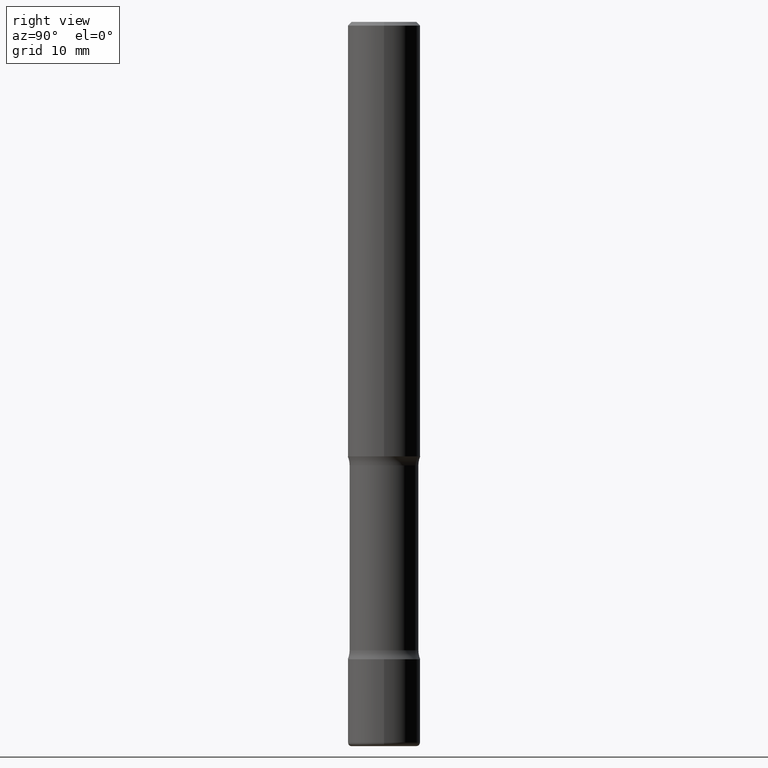
[diagram: clean part render]
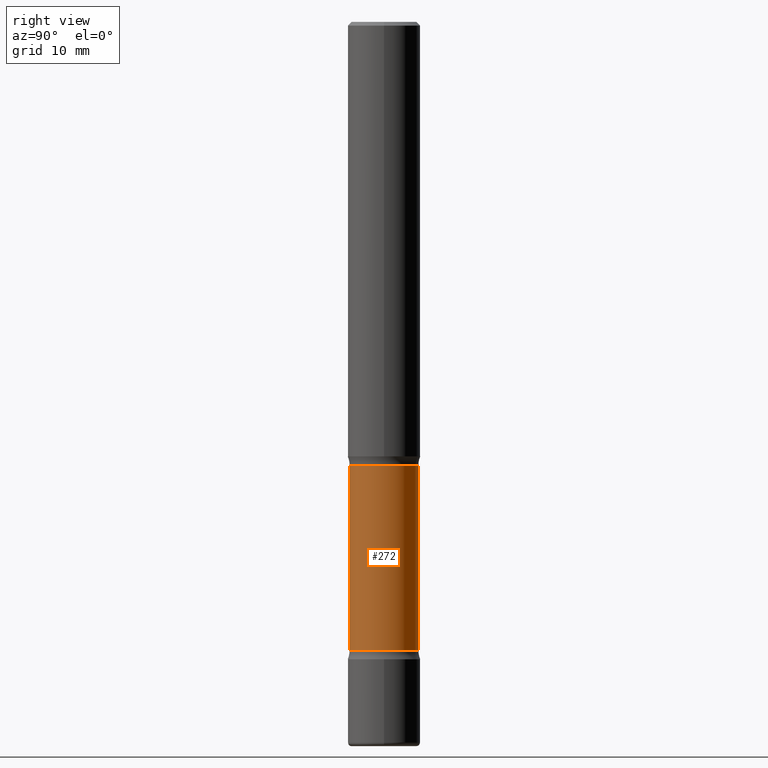
[diagram: same view with one face highlighted and labeled with its STEP entity id]
A machine part, right view. The second image highlights one B-rep face of the part: STEP entity #272.
In plain terms, the highlighted cylindrical surface (edge-blend (fillet) strip) has radius 4.7498 mm, axis along (0, -0, -1).
Its self-contained STEP definition (entity closure, byte-faithful):
#6 = EDGE_CURVE ( 'NONE', #455, #334, #110, .T. ) ;
#19 = DIRECTION ( 'NONE',  ( 6.982962677686266711E-15, 1.000000000000000000, -2.921762560068727439E-15 ) ) ;
#25 = ORIENTED_EDGE ( 'NONE', *, *, #6, .F. ) ;
#38 = FACE_OUTER_BOUND ( 'NONE', #42, .T. ) ;
#42 = EDGE_LOOP ( 'NONE', ( #397, #449, #25, #187 ) ) ;
#52 = VECTOR ( 'NONE', #415, 39.37007874015748143 ) ;
#81 = CARTESIAN_POINT ( 'NONE',  ( 1.305814020727429623E-15, 0.1869999999999864826, -3.937000000000001609 ) ) ;
#94 = CARTESIAN_POINT ( 'NONE',  ( 9.710679322936699330E-29, -1.362728943200010467E-14, -3.937000000000001165 ) ) ;
#105 = CARTESIAN_POINT ( 'NONE',  ( -1.316701078222246809E-15, -0.1870000000000088813, -2.410836174808470567 ) ) ;
#110 = CIRCLE ( 'NONE', #235, 0.1870000000000000551 ) ;
#142 = EDGE_CURVE ( 'NONE', #221, #455, #338, .T. ) ;
#146 = DIRECTION ( 'NONE',  ( 6.982962677686266711E-15, 1.000000000000000000, -2.921762560068729806E-15 ) ) ;
#153 = EDGE_CURVE ( 'NONE', #439, #334, #421, .T. ) ;
#187 = ORIENTED_EDGE ( 'NONE', *, *, #142, .F. ) ;
#220 = CARTESIAN_POINT ( 'NONE',  ( -1.316701078222217030E-15, -0.1870000000000119900, -3.415963825191531189 ) ) ;
#221 = VERTEX_POINT ( 'NONE', #391 ) ;
#231 = DIRECTION ( 'NONE',  ( 2.620889282446383185E-29, -3.240269232523581650E-15, -1.000000000000000000 ) ) ;
#235 = AXIS2_PLACEMENT_3D ( 'NONE', #278, #447, #146 ) ;
#236 = VECTOR ( 'NONE', #247, 39.37007874015748143 ) ;
#247 = DIRECTION ( 'NONE',  ( 2.620889282446383185E-29, -3.240269232523582044E-15, -1.000000000000000000 ) ) ;
#272 = ADVANCED_FACE ( 'NONE', ( #38 ), #388, .T. ) ;
#278 = CARTESIAN_POINT ( 'NONE',  ( 8.345101196614320923E-29, -1.193899194573644426E-14, -3.415963825191531633 ) ) ;
#333 = CIRCLE ( 'NONE', #432, 0.1870000000000002216 ) ;
#334 = VERTEX_POINT ( 'NONE', #220 ) ;
#338 = LINE ( 'NONE', #81, #236 ) ;
#388 = CYLINDRICAL_SURFACE ( 'NONE', #414, 0.1870000000000001106 ) ;
#391 = CARTESIAN_POINT ( 'NONE',  ( 1.305814020727390377E-15, 0.1869999999999915341, -2.410836174808471455 ) ) ;
#397 = ORIENTED_EDGE ( 'NONE', *, *, #491, .T. ) ;
#414 = AXIS2_PLACEMENT_3D ( 'NONE', #94, #523, #518 ) ;
#415 = DIRECTION ( 'NONE',  ( 2.620889282446383185E-29, -3.240269232523582044E-15, -1.000000000000000000 ) ) ;
#421 = LINE ( 'NONE', #509, #52 ) ;
#432 = AXIS2_PLACEMENT_3D ( 'NONE', #443, #231, #19 ) ;
#439 = VERTEX_POINT ( 'NONE', #105 ) ;
#443 = CARTESIAN_POINT ( 'NONE',  ( 5.710772910234841729E-29, -8.682107745441492905E-15, -2.410836174808471011 ) ) ;
#446 = CARTESIAN_POINT ( 'NONE',  ( 1.305814020727415620E-15, 0.1869999999999880924, -3.415963825191532521 ) ) ;
#447 = DIRECTION ( 'NONE',  ( 2.620889282446383185E-29, -3.240269232523581650E-15, -1.000000000000000000 ) ) ;
#449 = ORIENTED_EDGE ( 'NONE', *, *, #153, .T. ) ;
#455 = VERTEX_POINT ( 'NONE', #446 ) ;
#491 = EDGE_CURVE ( 'NONE', #221, #439, #333, .T. ) ;
#509 = CARTESIAN_POINT ( 'NONE',  ( -1.282913125583180022E-15, -0.1870000000000137386, -3.937000000000000721 ) ) ;
#518 = DIRECTION ( 'NONE',  ( 6.982962677686266711E-15, 1.000000000000000000, -2.921762560068729017E-15 ) ) ;
#523 = DIRECTION ( 'NONE',  ( 2.620889282446383185E-29, -3.240269232523581650E-15, -1.000000000000000000 ) ) ;